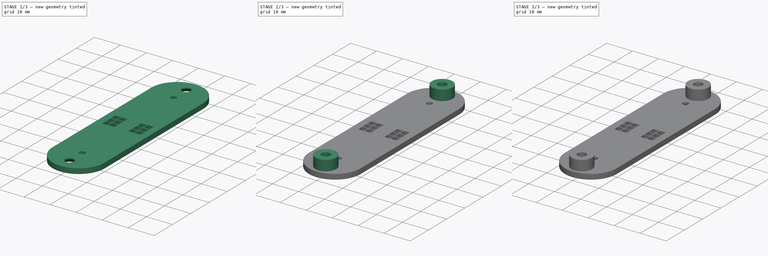
[diagram: build sequence overview — one tinted view per stage of 3, left to right]
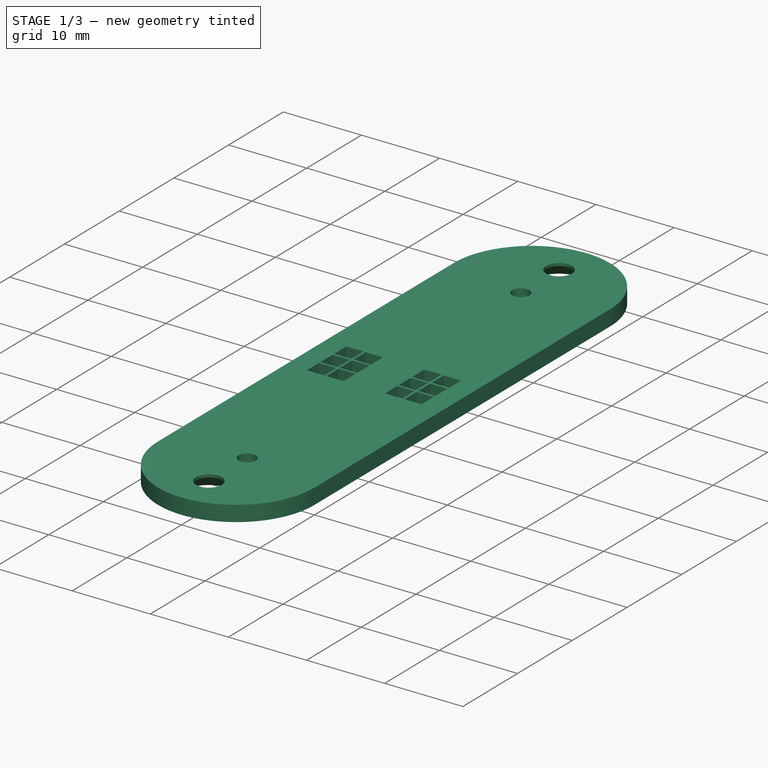
[diagram: stage 1 of 3 — iso view after this stage's code; geometry added in this stage tinted green]
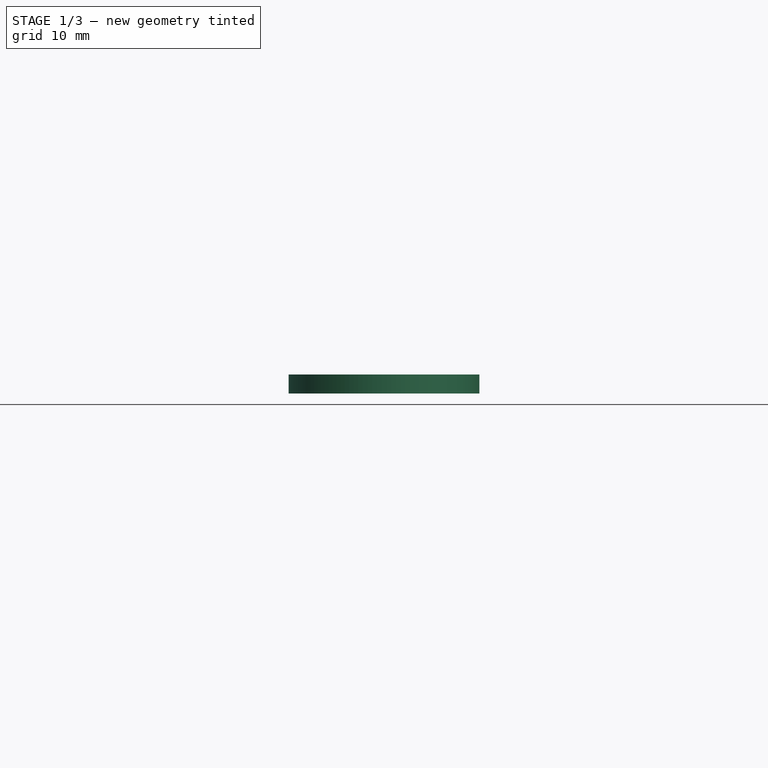
[diagram: stage 1 of 3 — front view after this stage's code; geometry added in this stage tinted green]
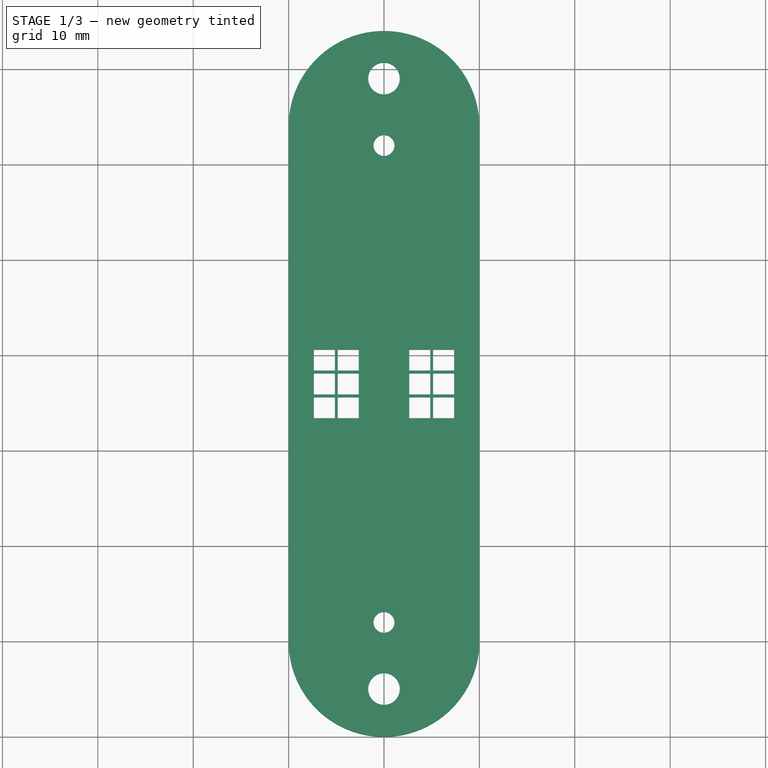
[diagram: stage 1 of 3 — top view after this stage's code; geometry added in this stage tinted green]
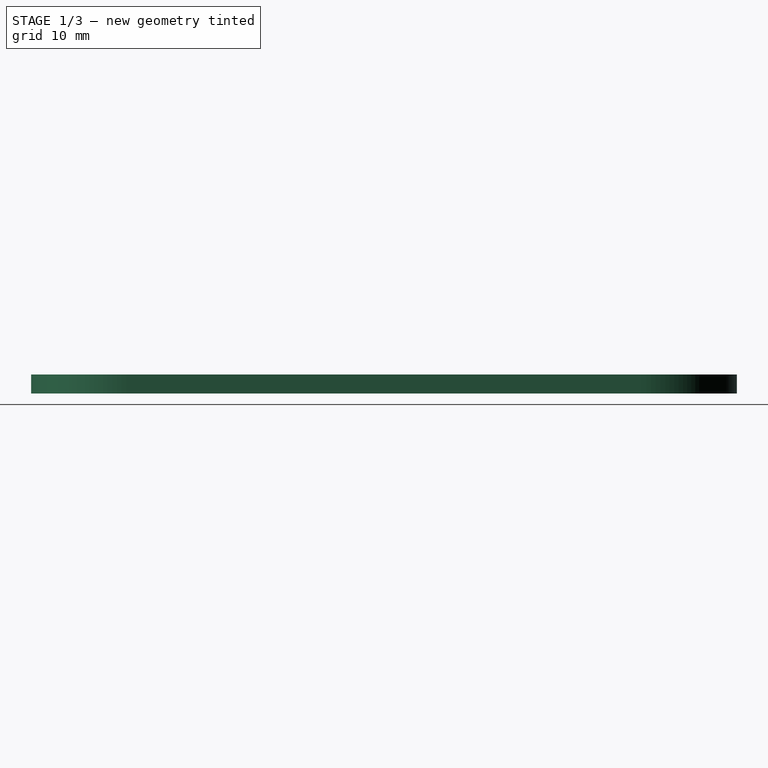
[diagram: stage 1 of 3 — right view after this stage's code; geometry added in this stage tinted green]
FCSTD DOCUMENT  (FreeCAD 0.16R6706 (Git))
Label: TopPlate_1.1
License: All rights reserved
LicenseURL: http://en.wikipedia.org/wiki/All_rights_reserved
objects: Sketcher::SketchObject×2, PartDesign::Pad×2, PartDesign::Chamfer×2, Part::MultiFuse×1
note: 9 computed .brp shape members not serialized (recipe doc carries the construction recipe); baked Part::Feature solids carry a one-line shape summary decoded from their .brp

FEATURE [Sketcher::SketchObject] Sketch
  sketch-geometry (56):
    g0: LineSegment StartX=0 StartY=10 StartZ=0 EndX=0 EndY=64 EndZ=0
    g1: LineSegment StartX=20 StartY=64 StartZ=0 EndX=20 EndY=10 EndZ=0
    g2: ArcOfCircle CenterX=10 CenterY=10 CenterZ=0 NormalX=0 NormalY=0 NormalZ=1 Radius=10 StartAngle=3.14159 EndAngle=6.28319
    g3: ArcOfCircle CenterX=10 CenterY=64 CenterZ=0 NormalX=0 NormalY=0 NormalZ=1 Radius=10 StartAngle=0 EndAngle=3.14159
    g4: LineSegment StartX=2.65 StartY=40.6 StartZ=0 EndX=4.85 EndY=40.6 EndZ=0
    g5: LineSegment StartX=4.85 StartY=40.6 StartZ=0 EndX=4.85 EndY=38.4 EndZ=0
    g6: LineSegment StartX=4.85 StartY=38.4 StartZ=0 EndX=2.65 EndY=38.4 EndZ=0
    g7: LineSegment StartX=2.65 StartY=38.4 StartZ=0 EndX=2.65 EndY=40.6 EndZ=0
    g8: LineSegment StartX=2.65 StartY=38.1 StartZ=0 EndX=4.85 EndY=38.1 EndZ=0
    g9: LineSegment StartX=4.85 StartY=38.1 StartZ=0 EndX=4.85 EndY=35.9 EndZ=0
    g10: LineSegment StartX=4.85 StartY=35.9 StartZ=0 EndX=2.65 EndY=35.9 EndZ=0
    g11: LineSegment StartX=2.65 StartY=35.9 StartZ=0 EndX=2.65 EndY=38.1 EndZ=0
    g12: LineSegment StartX=2.65 StartY=35.6 StartZ=0 EndX=4.85 EndY=35.6 EndZ=0
    g13: LineSegment StartX=4.85 StartY=35.6 StartZ=0 EndX=4.85 EndY=33.4 EndZ=0
    g14: LineSegment StartX=4.85 StartY=33.4 StartZ=0 EndX=2.65 EndY=33.4 EndZ=0
    g15: LineSegment StartX=2.65 StartY=33.4 StartZ=0 EndX=2.65 EndY=35.6 EndZ=0
    g16: LineSegment StartX=7.35 StartY=33.4 StartZ=0 EndX=5.15 EndY=33.4 EndZ=0
    g17: LineSegment StartX=5.15 StartY=33.4 StartZ=0 EndX=5.15 EndY=35.6 EndZ=0
    g18: LineSegment StartX=5.15 StartY=35.6 StartZ=0 EndX=7.35 EndY=35.6 EndZ=0
    g19: LineSegment StartX=7.35 StartY=35.6 StartZ=0 EndX=7.35 EndY=33.4 EndZ=0
    g20: LineSegment StartX=7.35 StartY=35.9 StartZ=0 EndX=5.15 EndY=35.9 EndZ=0
    g21: LineSegment StartX=5.15 StartY=35.9 StartZ=0 EndX=5.15 EndY=38.1 EndZ=0
    g22: LineSegment StartX=5.15 StartY=38.1 StartZ=0 EndX=7.35 EndY=38.1 EndZ=0
    g23: LineSegment StartX=7.35 StartY=38.1 StartZ=0 EndX=7.35 EndY=35.9 EndZ=0
    g24: LineSegment StartX=7.35 StartY=38.4 StartZ=0 EndX=5.15 EndY=38.4 EndZ=0
    g25: LineSegment StartX=5.15 StartY=38.4 StartZ=0 EndX=5.15 EndY=40.6 EndZ=0
    g26: LineSegment StartX=5.15 StartY=40.6 StartZ=0 EndX=7.35 EndY=40.6 EndZ=0
    g27: LineSegment StartX=7.35 StartY=40.6 StartZ=0 EndX=7.35 EndY=38.4 EndZ=0
    g28: LineSegment StartX=12.65 StartY=40.6 StartZ=0 EndX=14.85 EndY=40.6 EndZ=0
    g29: LineSegment StartX=14.85 StartY=40.6 StartZ=0 EndX=14.85 EndY=38.4 EndZ=0
    g30: LineSegment StartX=14.85 StartY=38.4 StartZ=0 EndX=12.65 EndY=38.4 EndZ=0
    g31: LineSegment StartX=12.65 StartY=38.4 StartZ=0 EndX=12.65 EndY=40.6 EndZ=0
    g32: LineSegment StartX=12.65 StartY=38.1 StartZ=0 EndX=14.85 EndY=38.1 EndZ=0
    g33: LineSegment StartX=14.85 StartY=38.1 StartZ=0 EndX=14.85 EndY=35.9 EndZ=0
    g34: LineSegment StartX=14.85 StartY=35.9 StartZ=0 EndX=12.65 EndY=35.9 EndZ=0
    g35: LineSegment StartX=12.65 StartY=35.9 StartZ=0 EndX=12.65 EndY=38.1 EndZ=0
    g36: LineSegment StartX=12.65 StartY=35.6 StartZ=0 EndX=14.85 EndY=35.6 EndZ=0
    g37: LineSegment StartX=14.85 StartY=35.6 StartZ=0 EndX=14.85 EndY=33.4 EndZ=0
    g38: LineSegment StartX=14.85 StartY=33.4 StartZ=0 EndX=12.65 EndY=33.4 EndZ=0
    g39: LineSegment StartX=12.65 StartY=33.4 StartZ=0 EndX=12.65 EndY=35.6 EndZ=0
    g40: LineSegment StartX=17.35 StartY=33.4 StartZ=0 EndX=15.15 EndY=33.4 EndZ=0
    g41: LineSegment StartX=15.15 StartY=33.4 StartZ=0 EndX=15.15 EndY=35.6 EndZ=0
    g42: LineSegment StartX=15.15 StartY=35.6 StartZ=0 EndX=17.35 EndY=35.6 EndZ=0
    g43: LineSegment StartX=17.35 StartY=35.6 StartZ=0 EndX=17.35 EndY=33.4 EndZ=0
    g44: LineSegment StartX=15.15 StartY=35.9 StartZ=0 EndX=17.35 EndY=35.9 EndZ=0
    g45: LineSegment StartX=17.35 StartY=35.9 StartZ=0 EndX=17.35 EndY=38.1 EndZ=0
    g46: LineSegment StartX=17.35 StartY=38.1 StartZ=0 EndX=15.15 EndY=38.1 EndZ=0
    g47: LineSegment StartX=15.15 StartY=38.1 StartZ=0 EndX=15.15 EndY=35.9 EndZ=0
    g48: LineSegment StartX=17.35 StartY=38.4 StartZ=0 EndX=15.15 EndY=38.4 EndZ=0
    g49: LineSegment StartX=15.15 StartY=38.4 StartZ=0 EndX=15.15 EndY=40.6 EndZ=0
    g50: LineSegment StartX=15.15 StartY=40.6 StartZ=0 EndX=17.35 EndY=40.6 EndZ=0
    g51: LineSegment StartX=17.35 StartY=40.6 StartZ=0 EndX=17.35 EndY=38.4 EndZ=0
    g52: Circle CenterX=10 CenterY=69 CenterZ=0 NormalX=0 NormalY=0 NormalZ=1 Radius=1.65
    g53: Circle CenterX=10 CenterY=5 CenterZ=0 NormalX=0 NormalY=0 NormalZ=1 Radius=1.65
    g54: Circle CenterX=10 CenterY=62 CenterZ=0 NormalX=0 NormalY=0 NormalZ=1 Radius=1.1
    g55: Circle CenterX=10 CenterY=12 CenterZ=0 NormalX=0 NormalY=0 NormalZ=1 Radius=1.1
  constraints (170):
    c: Vertical(g0)
    c: Vertical(g1)
    c: DistanceX(g0,g1) = 20
    c: DistanceX(g-1,g0) = 0
    c: DistanceY(g1,g0) = 0
    c: DistanceY(g0,g0) = 54
    c: DistanceY(g1,g1) = 54
    c: DistanceY(g-1,g0) = 10
    c: Coincident(g2,g0)
    c: Coincident(g2,g1)
    c: DistanceY(g2,g0) = 0
    c: Coincident(g3,g0)
    c: Coincident(g3,g1)
    c: DistanceY(g0,g3) = 0
    c: Coincident(g4,g5)
    c: Coincident(g5,g6)
    c: Coincident(g6,g7)
    c: Coincident(g7,g4)
    c: Horizontal(g4)
    c: Horizontal(g6)
    c: Vertical(g5)
    c: Vertical(g7)
    c: Coincident(g8,g9)
    c: Coincident(g9,g10)
    c: Coincident(g10,g11)
    c: Coincident(g11,g8)
    c: Horizontal(g8)
    c: Horizontal(g10)
    c: Vertical(g9)
    c: Vertical(g11)
    c: Coincident(g12,g13)
    c: Coincident(g13,g14)
    c: Coincident(g14,g15)
    c: Coincident(g15,g12)
    c: Horizontal(g12)
    c: Horizontal(g14)
    c: Vertical(g13)
    c: Vertical(g15)
    c: Coincident(g16,g17)
    c: Coincident(g17,g18)
    c: Coincident(g18,g19)
    c: Coincident(g19,g16)
    c: Horizontal(g16)
    c: Horizontal(g18)
    c: Vertical(g17)
    c: Vertical(g19)
    c: Coincident(g20,g21)
    c: Coincident(g21,g22)
    c: Coincident(g22,g23)
    c: Coincident(g23,g20)
    c: Horizontal(g20)
    c: Horizontal(g22)
    c: Vertical(g21)
    c: Vertical(g23)
    c: Coincident(g24,g25)
    c: Coincident(g25,g26)
    c: Coincident(g26,g27)
    c: Coincident(g27,g24)
    c: Horizontal(g24)
    c: Horizontal(g26)
    c: Vertical(g25)
    c: Vertical(g27)
    c: Coincident(g28,g29)
    c: Coincident(g29,g30)
    c: Coincident(g30,g31)
    c: Coincident(g31,g28)
    c: Horizontal(g28)
    c: Horizontal(g30)
    c: Vertical(g29)
    c: Vertical(g31)
    c: Coincident(g32,g33)
    c: Coincident(g33,g34)
    c: Coincident(g34,g35)
    c: Coincident(g35,g32)
    c: Horizontal(g32)
    c: Horizontal(g34)
    c: Vertical(g33)
    c: Vertical(g35)
    c: Coincident(g36,g37)
    c: Coincident(g37,g38)
    c: Coincident(g38,g39)
    c: Coincident(g39,g36)
    c: Horizontal(g36)
    c: Horizontal(g38)
    c: Vertical(g37)
    c: Vertical(g39)
    c: Coincident(g40,g41)
    c: Coincident(g41,g42)
    c: Coincident(g42,g43)
    c: Coincident(g43,g40)
    c: Horizontal(g40)
    c: Horizontal(g42)
    c: Vertical(g41)
    c: Vertical(g43)
    c: Coincident(g44,g45)
    c: Coincident(g45,g46)
    c: Coincident(g46,g47)
    c: Coincident(g47,g44)
    c: Horizontal(g44)
    c: Horizontal(g46)
    c: Vertical(g45)
    c: Vertical(g47)
    c: Coincident(g48,g49)
    c: Coincident(g49,g50)
    c: Coincident(g50,g51)
    c: Coincident(g51,g48)
    c: Horizontal(g48)
    c: Horizontal(g50)
    c: Vertical(g49)
    c: Vertical(g51)
    c: Radius(g52) = 1.65
    c: DistanceX(g52,g3) = 0
    c: DistanceY(g0,g52) = 5
    c: Radius(g53) = 1.65
    c: DistanceX(g53,g2) = 0
    c: DistanceY(g53,g0) = 5
    c: DistanceX(g4,g4) = 2.2
    c: DistanceX(g25,g26) = 2.2
    c: DistanceY(g6,g4) = 2.2
    c: DistanceX(g8,g8) = 2.2
    c: DistanceY(g10,g8) = 2.2
    c: DistanceY(g24,g26) = 2.2
    c: DistanceY(g4,g25) = 0
    c: DistanceY(g21,g8) = 0
    c: DistanceX(g6,g8) = 0
    c: DistanceX(g21,g22) = 2.2
    c: DistanceY(g20,g21) = 2.2
    c: DistanceX(g12,g12) = 2.2
    c: DistanceY(g14,g12) = 2.2
    c: DistanceX(g12,g10) = 0
    c: DistanceX(g17,g18) = 2.2
    c: DistanceY(g16,g17) = 2.2
    c: DistanceX(g20,g17) = 0
    c: DistanceY(g17,g12) = 0
    c: DistanceX(g24,g21) = 0
    c: DistanceY(g-1,g10) = 35.9
    c: DistanceY(g12,g10) = 0.3
    c: DistanceX(g8,g21) = 0.3
    c: DistanceY(g8,g6) = 0.3
    c: DistanceX(g28,g28) = 2.2
    c: DistanceY(g30,g28) = 2.2
    c: DistanceY(g34,g32) = 2.2
    c: DistanceX(g30,g32) = 0
    c: DistanceX(g34,g36) = 0
    c: DistanceX(g32,g29) = 0
    c: DistanceY(g32,g30) = 0.3
    c: DistanceY(g36,g34) = 0.3
    c: DistanceY(g38,g36) = 2.2
    c: DistanceX(g36,g33) = 0
    c: DistanceY(g28,g49) = 0
    c: DistanceX(g28,g49) = 0.3
    c: DistanceX(g48,g46) = 0
    c: DistanceX(g44,g41) = 0
    c: DistanceX(g49,g50) = 2.2
    c: DistanceY(g29,g48) = 0
    c: DistanceY(g46,g32) = 0
    c: DistanceX(g45,g48) = 0
    c: DistanceY(g44,g33) = 0
    c: DistanceY(g41,g36) = 0
    c: DistanceX(g42,g44) = 0
    c: DistanceY(g40,g37) = 0
    c: DistanceY(g4,g28) = 0
    c: DistanceX(g-1,g10) = 2.65
    c: DistanceX(g50,g1) = 2.65
    c: Radius(g55) = 1.1
    c: Radius(g54) = 1.1
    c: DistanceX(g-1,g54) = 10
    c: DistanceX(g-1,g55) = 10
    c: DistanceY(g-1,g55) = 12
    c: DistanceY(g-1,g54) = 62
FEATURE [PartDesign::Pad] Pad
  Length = 2
  Length2 = 100
  Sketch = -> Sketch
  Type = 0
FEATURE [PartDesign::Chamfer] Chamfer
  Base = -> Pad [Edge14,Edge17]
  Size = 1.65
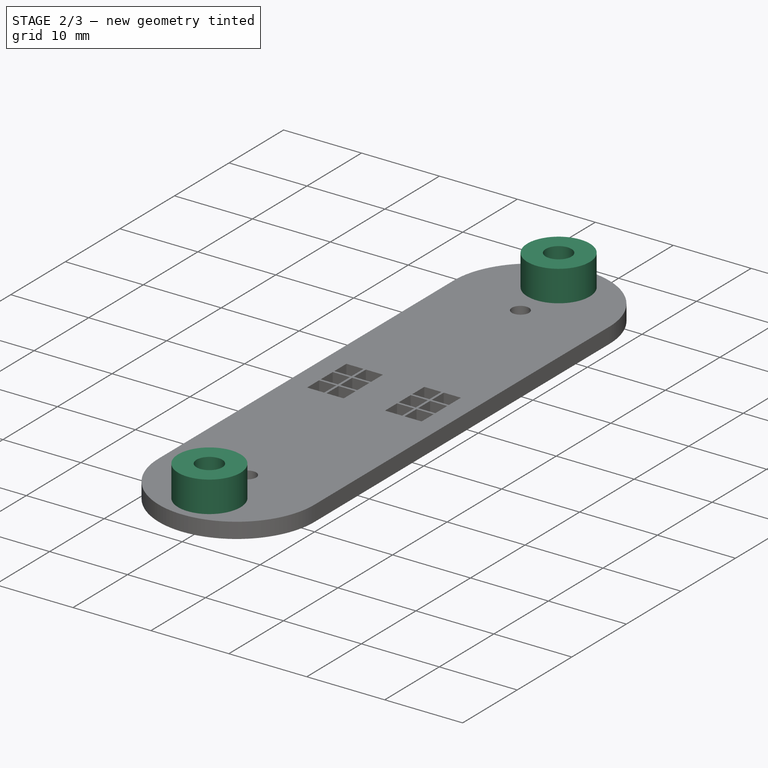
[diagram: stage 2 of 3 — iso view after this stage's code; geometry added in this stage tinted green]
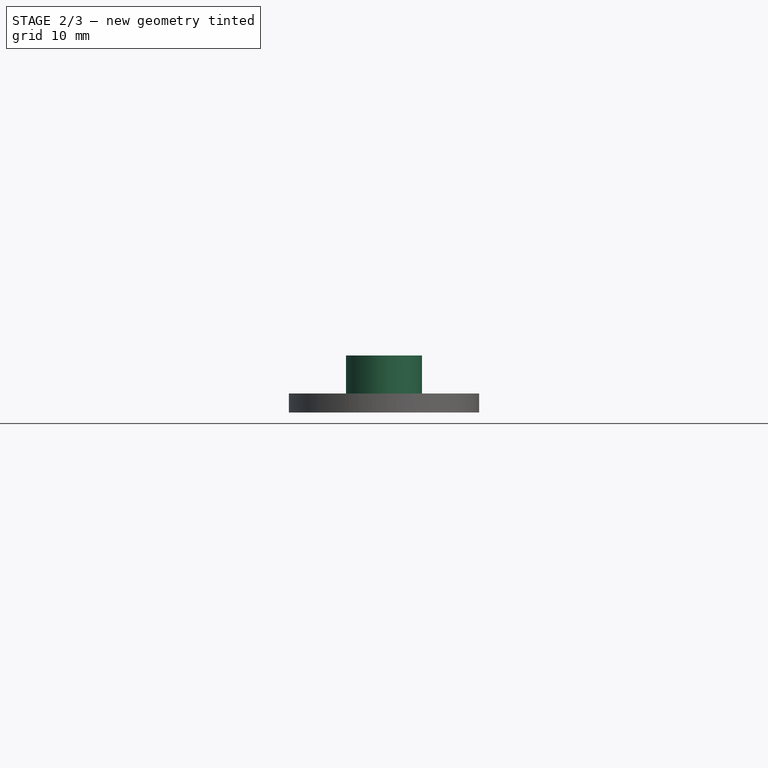
[diagram: stage 2 of 3 — front view after this stage's code; geometry added in this stage tinted green]
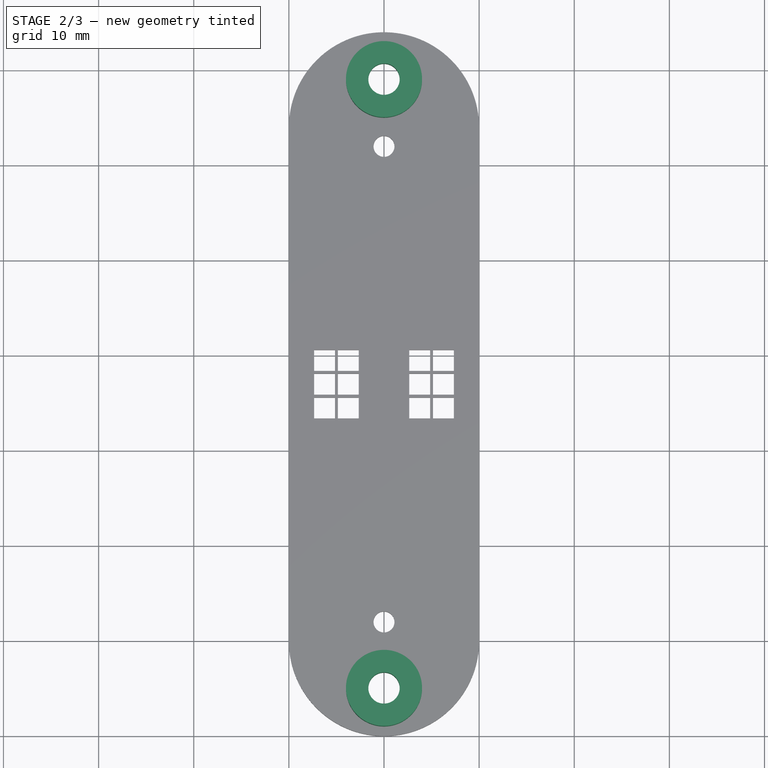
[diagram: stage 2 of 3 — top view after this stage's code; geometry added in this stage tinted green]
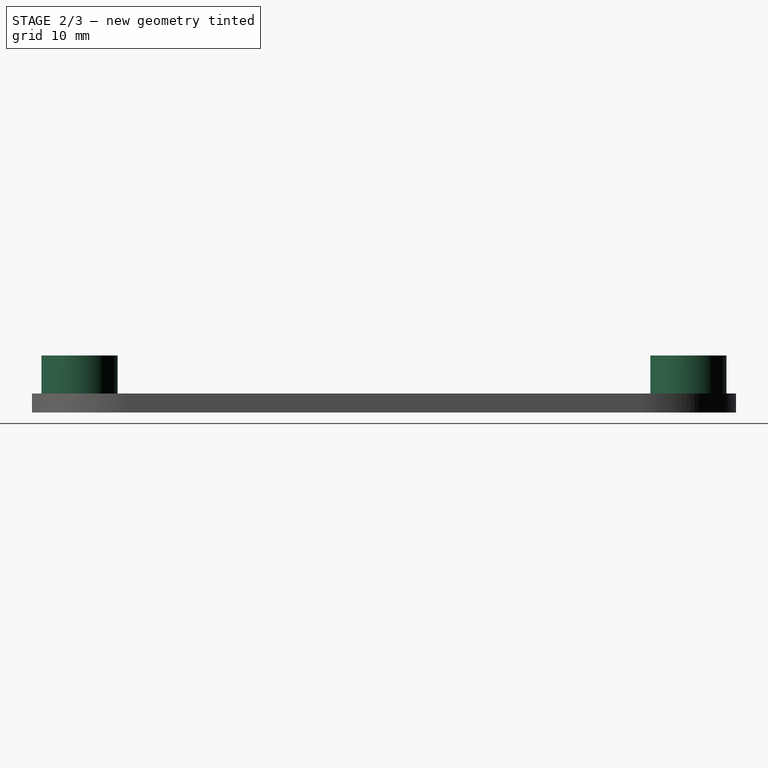
[diagram: stage 2 of 3 — right view after this stage's code; geometry added in this stage tinted green]
FEATURE [Sketcher::SketchObject] Sketch001
  Placement = pos=(0,0,2) rot=(0,0,1;0rad)
  sketch-geometry (4):
    g0: Circle CenterX=10 CenterY=69 CenterZ=0 NormalX=0 NormalY=0 NormalZ=1 Radius=4
    g1: Circle CenterX=10 CenterY=69 CenterZ=0 NormalX=0 NormalY=0 NormalZ=1 Radius=1.65
    g2: Circle CenterX=10 CenterY=5 CenterZ=0 NormalX=0 NormalY=0 NormalZ=1 Radius=4
    g3: Circle CenterX=10 CenterY=5 CenterZ=0 NormalX=0 NormalY=0 NormalZ=1 Radius=1.65
  constraints (10):
    c: Coincident(g1,g0)
    c: Coincident(g3,g2)
    c: Radius(g3) = 1.65
    c: DistanceX(g-1,g2) = 10
    c: DistanceY(g-1,g2) = 5
    c: Radius(g2) = 4
    c: Radius(g1) = 1.65
    c: Radius(g0) = 4
    c: DistanceX(g-1,g0) = 10
    c: DistanceY(g-1,g0) = 69
FEATURE [PartDesign::Pad] Pad001
  Length = 4
  Length2 = 100
  Placement = pos=(0,0,2) rot=(0,0,1;0rad)
  Sketch = -> Sketch001
  Type = 0
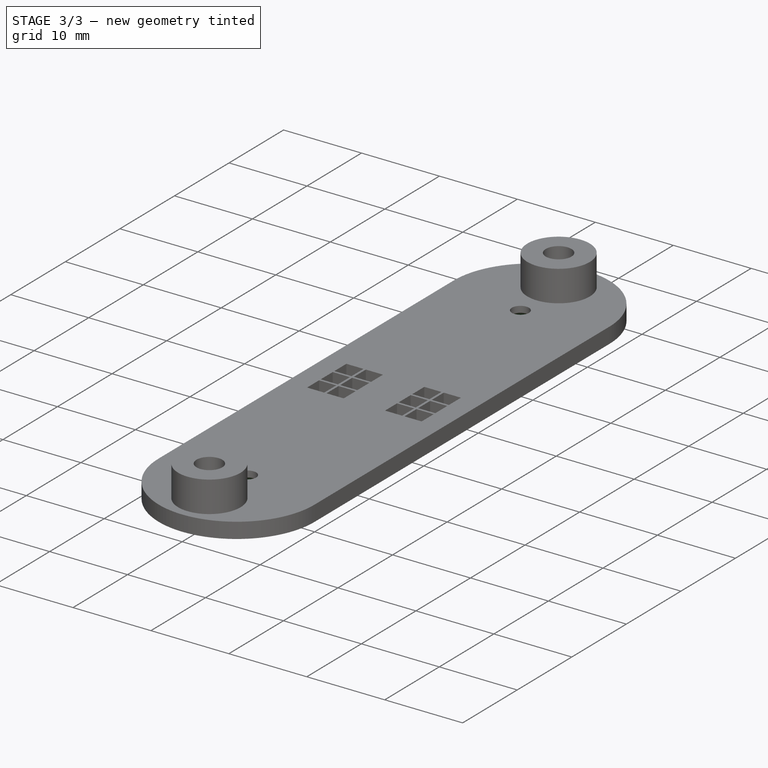
[diagram: stage 3 of 3 — iso view after this stage's code; geometry added in this stage tinted green]
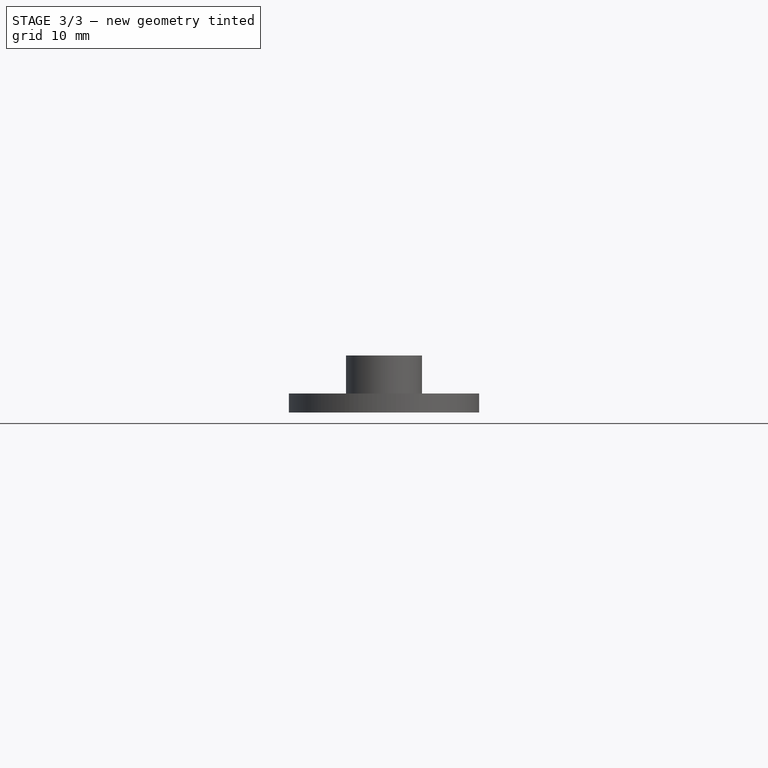
[diagram: stage 3 of 3 — front view after this stage's code; geometry added in this stage tinted green]
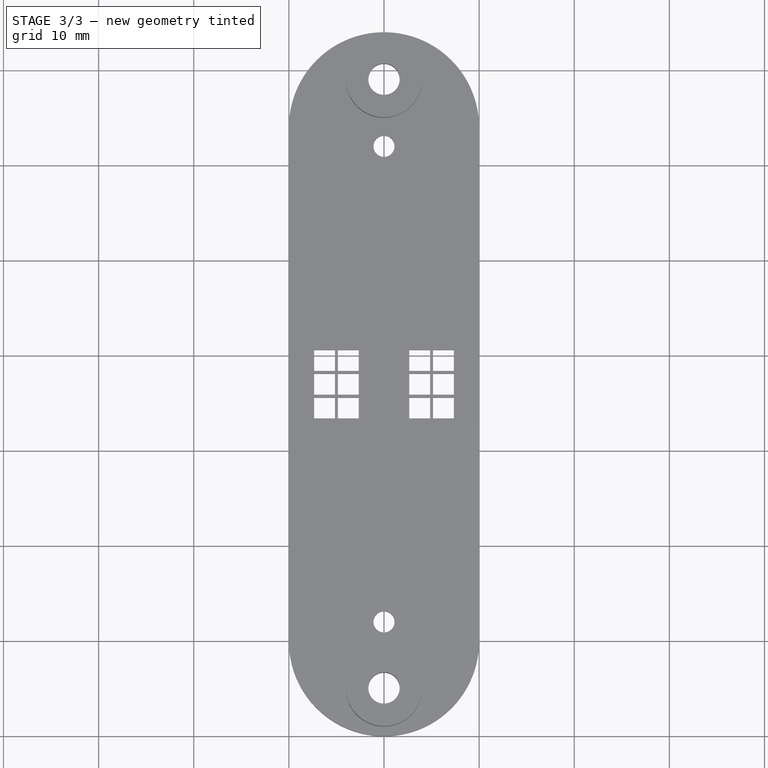
[diagram: stage 3 of 3 — top view after this stage's code; geometry added in this stage tinted green]
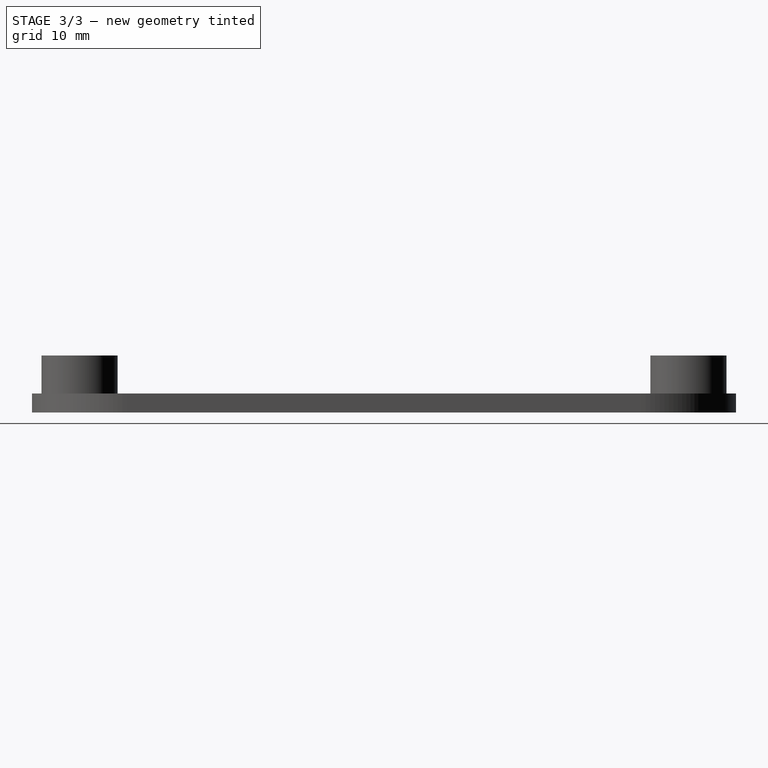
[diagram: stage 3 of 3 — right view after this stage's code; geometry added in this stage tinted green]
FEATURE [Part::MultiFuse] Fusion  label="TopPlate"
  Shapes = -> [Pad001,Chamfer]
FEATURE [PartDesign::Chamfer] Chamfer001
  Base = -> Fusion [Edge123,Edge141]
  Size = 1.2
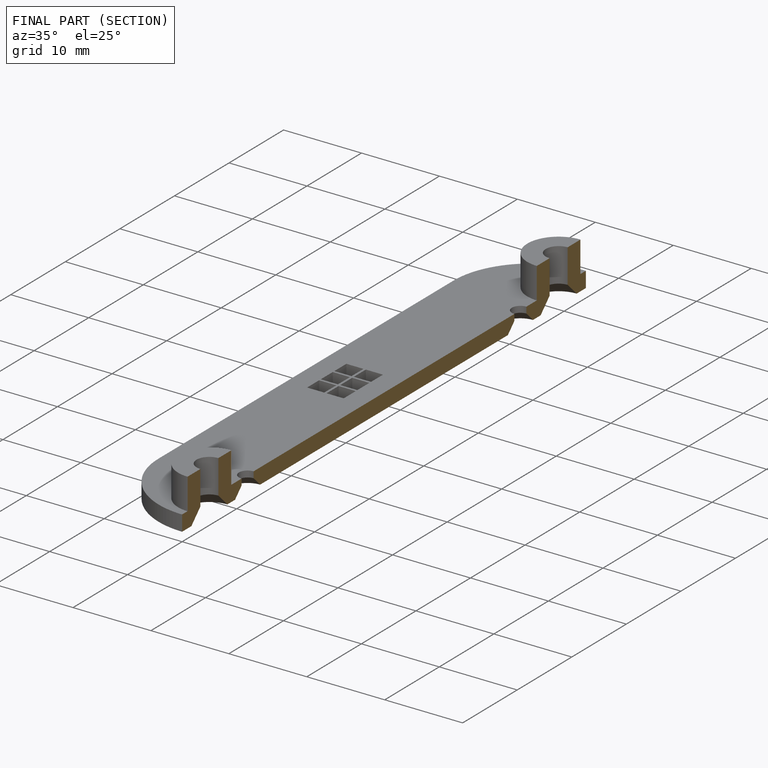
[diagram: finished part — half-section view (interior)]
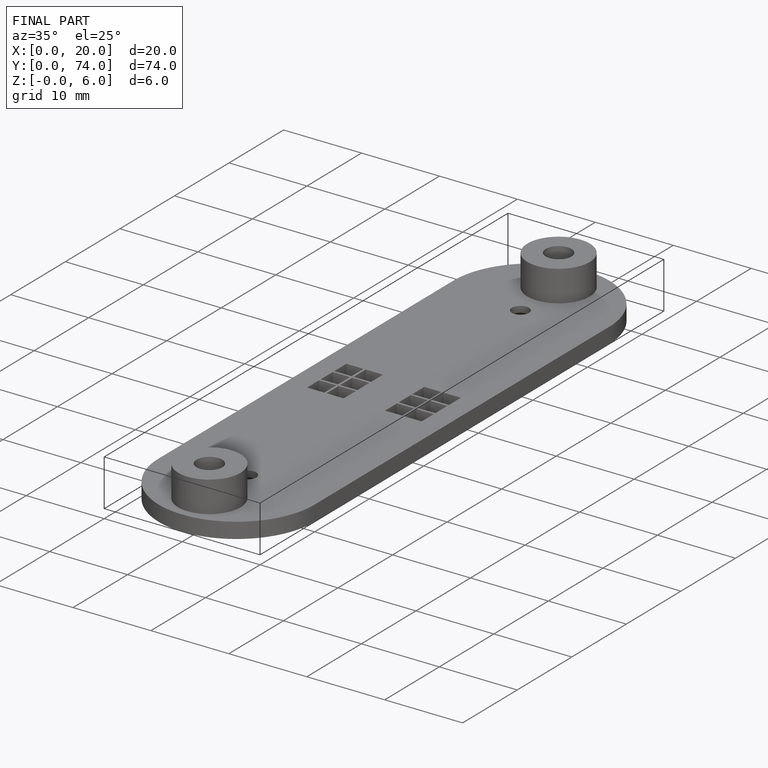
[diagram: finished part — iso view with bounding-box wireframe]
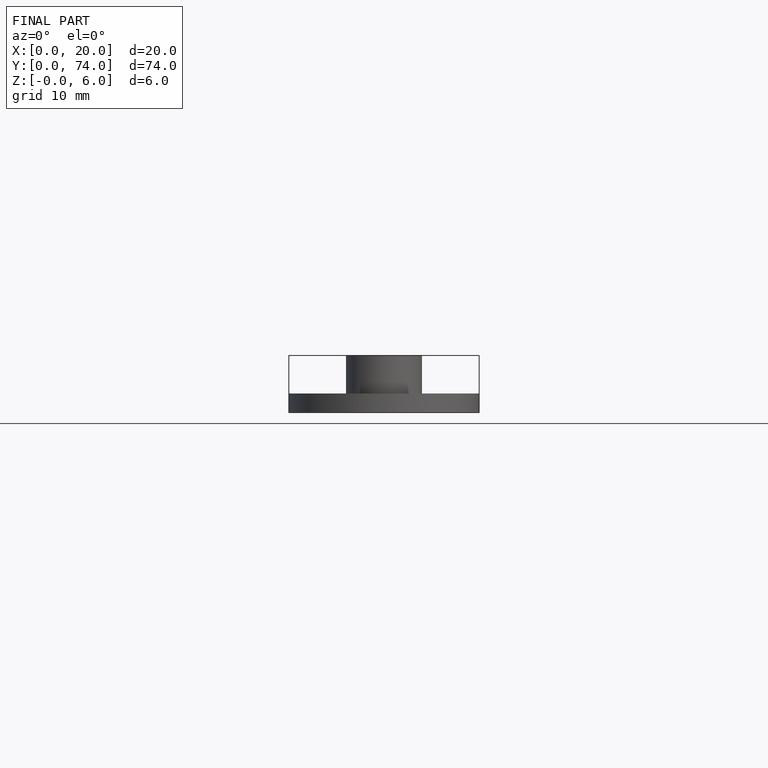
[diagram: finished part — front view with bounding-box wireframe]
